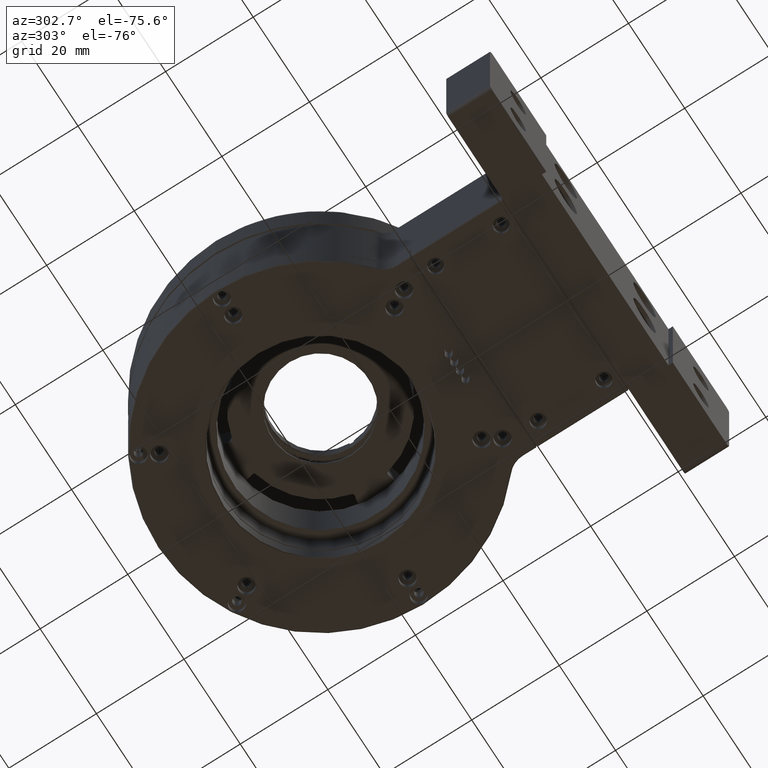
[diagram: clean part render]
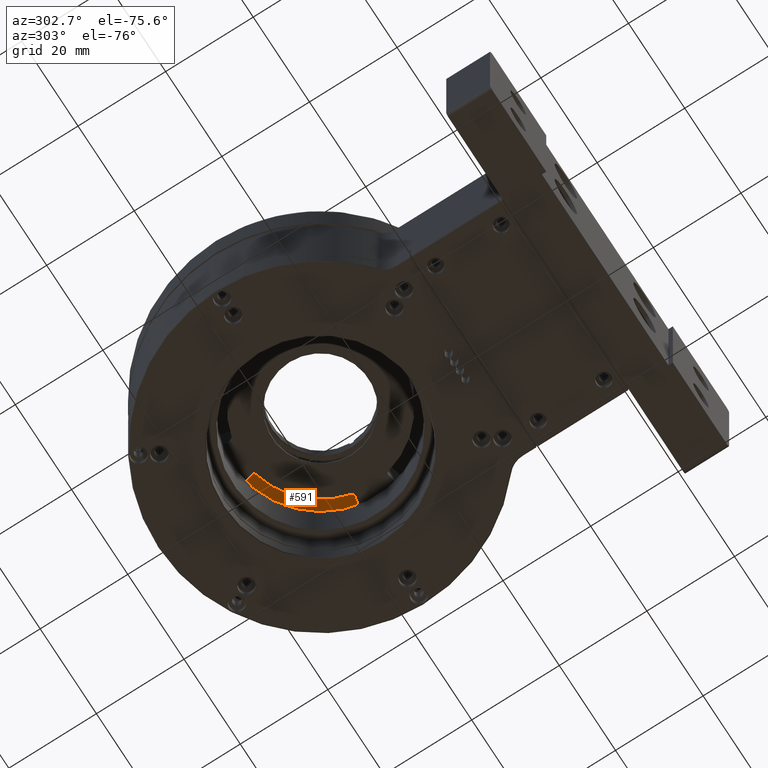
[diagram: same view with one face highlighted and labeled with its STEP entity id]
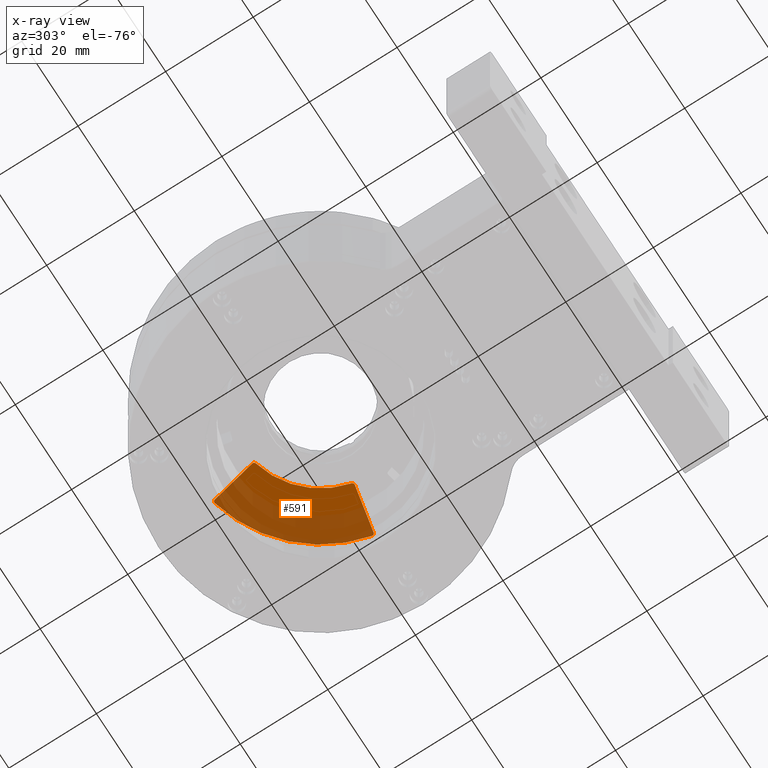
[diagram: x-ray of the same camera — body ghosted, the highlighted face saturated]
A machine part, auxiliary view. The second image highlights one B-rep face of the part: STEP entity #591.
The next image is the same camera in x-ray: the body ghosted, the highlighted face saturated — about 60% of this face is hidden behind the body in this view.
In plain terms, the highlighted planar face has unit normal (-0, 0, -1).
Its self-contained STEP definition (entity closure, byte-faithful):
#57 = CIRCLE ( 'NONE', #7062, 0.5000000000000001110 ) ;
#129 = ORIENTED_EDGE ( 'NONE', *, *, #3026, .T. ) ;
#141 = CARTESIAN_POINT ( 'NONE',  ( 18.10063269528307472, 59.79039523406878942, 37.99999999999992184 ) ) ;
#150 = EDGE_CURVE ( 'NONE', #1739, #4287, #57, .T. ) ;
#299 = DIRECTION ( 'NONE',  ( -2.191762339234539386E-15, 4.880728349222902423E-16, -1.000000000000000000 ) ) ;
#429 = EDGE_CURVE ( 'NONE', #6220, #1739, #4263, .T. ) ;
#591 = ADVANCED_FACE ( 'NONE', ( #10602 ), #8620, .T. ) ;
#656 = ORIENTED_EDGE ( 'NONE', *, *, #6009, .T. ) ;
#781 = ORIENTED_EDGE ( 'NONE', *, *, #5091, .T. ) ;
#1547 = CARTESIAN_POINT ( 'NONE',  ( 27.93501267910712471, 62.36062627562155569, 37.99999999999990052 ) ) ;
#1684 = DIRECTION ( 'NONE',  ( -2.191762339234539386E-15, 4.880728349222902423E-16, -1.000000000000000000 ) ) ;
#1739 = VERTEX_POINT ( 'NONE', #8681 ) ;
#1937 = DIRECTION ( 'NONE',  ( -0.9787701197315857859, -0.2049611005059675251, 2.045195541823030530E-15 ) ) ;
#2078 = CIRCLE ( 'NONE', #10563, 0.4999999999999992228 ) ;
#2333 = AXIS2_PLACEMENT_3D ( 'NONE', #3288, #9618, #9551 ) ;
#2656 = CARTESIAN_POINT ( 'NONE',  ( 28.42253471539171272, 62.47163196978598165, 37.99999999999990052 ) ) ;
#2825 = VERTEX_POINT ( 'NONE', #2656 ) ;
#2927 = AXIS2_PLACEMENT_3D ( 'NONE', #11823, #3662, #4472 ) ;
#3025 = CIRCLE ( 'NONE', #4110, 29.15000000000000213 ) ;
#3026 = EDGE_CURVE ( 'NONE', #5396, #8739, #2078, .T. ) ;
#3098 = VERTEX_POINT ( 'NONE', #12965 ) ;
#3288 = CARTESIAN_POINT ( 'NONE',  ( 4.913026226478148288E-14, 56.00000000000002132, 37.99999999999996447 ) ) ;
#3415 = ORIENTED_EDGE ( 'NONE', *, *, #429, .T. ) ;
#3512 = DIRECTION ( 'NONE',  ( -0.9999954532434547350, 0.003015541811622067785, 2.142368615271528285E-15 ) ) ;
#3662 = DIRECTION ( 'NONE',  ( -2.191762339234539386E-15, 4.880728349222902423E-16, -1.000000000000000000 ) ) ;
#4099 = ORIENTED_EDGE ( 'NONE', *, *, #150, .T. ) ;
#4110 = AXIS2_PLACEMENT_3D ( 'NONE', #7935, #12844, #3512 ) ;
#4263 = LINE ( 'NONE', #5090, #9032 ) ;
#4287 = VERTEX_POINT ( 'NONE', #4460 ) ;
#4460 = CARTESIAN_POINT ( 'NONE',  ( 6.642932174567367731, 84.38298701905949883, 37.99999999999996447 ) ) ;
#4472 = DIRECTION ( 'NONE',  ( -0.9999954532434546239, 0.003015541811622030489, 2.193224177865602524E-15 ) ) ;
#5044 = ORIENTED_EDGE ( 'NONE', *, *, #11714, .T. ) ;
#5090 = CARTESIAN_POINT ( 'NONE',  ( 3.795487028673565799, 73.59529136488430368, 37.99999999999996447 ) ) ;
#5091 = EDGE_CURVE ( 'NONE', #2825, #3098, #11500, .T. ) ;
#5396 = VERTEX_POINT ( 'NONE', #141 ) ;
#5827 = DIRECTION ( 'NONE',  ( -0.9999954532434547350, 0.003015541811618454356, 0.000000000000000000 ) ) ;
#5894 = CARTESIAN_POINT ( 'NONE',  ( 17.51171560056981846, 60.16411055626067395, 37.99999999999992184 ) ) ;
#6009 = EDGE_CURVE ( 'NONE', #4287, #2825, #3025, .T. ) ;
#6220 = VERTEX_POINT ( 'NONE', #7303 ) ;
#6425 = CARTESIAN_POINT ( 'NONE',  ( 4.388250324742747566, 73.97201321742771540, 37.99999999999996447 ) ) ;
#6677 = CARTESIAN_POINT ( 'NONE',  ( 6.528988226461580169, 83.89614333091095943, 37.99999999999996447 ) ) ;
#6678 = CIRCLE ( 'NONE', #2333, 18.00000000000000711 ) ;
#6885 = VECTOR ( 'NONE', #1937, 1000.000000000000000 ) ;
#7062 = AXIS2_PLACEMENT_3D ( 'NONE', #6677, #299, #11710 ) ;
#7303 = CARTESIAN_POINT ( 'NONE',  ( 3.899492231273739673, 74.07744341266865717, 37.99999999999996447 ) ) ;
#7316 = CIRCLE ( 'NONE', #12533, 0.5000000000000001110 ) ;
#7406 = DIRECTION ( 'NONE',  ( 0.2108603904818618924, 0.9775161869380152302, 1.494323384683061387E-17 ) ) ;
#7586 = DIRECTION ( 'NONE',  ( -0.9999954532434547350, 0.003015541811618448718, 0.000000000000000000 ) ) ;
#7901 = DIRECTION ( 'NONE',  ( -0.9999954532434547350, 0.003015541811618454356, 0.000000000000000000 ) ) ;
#7935 = CARTESIAN_POINT ( 'NONE',  ( 4.913026226478148288E-14, 56.00000000000002132, 37.99999999999996447 ) ) ;
#8620 = PLANE ( 'NONE',  #2927 ) ;
#8671 = DIRECTION ( 'NONE',  ( -2.191762339234539386E-15, 4.880728349222902423E-16, -1.000000000000000000 ) ) ;
#8681 = CARTESIAN_POINT ( 'NONE',  ( 6.040230132992571832, 84.00157352615190121, 37.99999999999996447 ) ) ;
#8739 = VERTEX_POINT ( 'NONE', #5894 ) ;
#9032 = VECTOR ( 'NONE', #7406, 1000.000000000000114 ) ;
#9324 = ORIENTED_EDGE ( 'NONE', *, *, #11173, .T. ) ;
#9551 = DIRECTION ( 'NONE',  ( -0.9999954532434546239, 0.003015541811621917732, 2.312964634635741872E-15 ) ) ;
#9618 = DIRECTION ( 'NONE',  ( -2.191762339234539386E-15, 4.880728349222902423E-16, -1.000000000000000000 ) ) ;
#10184 = AXIS2_PLACEMENT_3D ( 'NONE', #1547, #1684, #7901 ) ;
#10563 = AXIS2_PLACEMENT_3D ( 'NONE', #10858, #11946, #5827 ) ;
#10602 = FACE_OUTER_BOUND ( 'NONE', #12991, .T. ) ;
#10858 = CARTESIAN_POINT ( 'NONE',  ( 17.99815214503009031, 60.27978029393458570, 37.99999999999992184 ) ) ;
#11173 = EDGE_CURVE ( 'NONE', #3098, #5396, #12293, .T. ) ;
#11203 = ORIENTED_EDGE ( 'NONE', *, *, #13149, .F. ) ;
#11500 = CIRCLE ( 'NONE', #10184, 0.4999999999999992228 ) ;
#11583 = CARTESIAN_POINT ( 'NONE',  ( 4.269648964614567888, 73.48628313047021265, 37.99999999999996447 ) ) ;
#11710 = DIRECTION ( 'NONE',  ( -0.9999954532434547350, 0.003015541811618448718, 0.000000000000000000 ) ) ;
#11714 = EDGE_CURVE ( 'NONE', #12118, #6220, #7316, .T. ) ;
#11823 = CARTESIAN_POINT ( 'NONE',  ( 4.913026226478148288E-14, 56.00000000000002132, 37.99999999999996447 ) ) ;
#11946 = DIRECTION ( 'NONE',  ( -2.191762339234539386E-15, 4.880728349222902423E-16, -1.000000000000000000 ) ) ;
#12118 = VERTEX_POINT ( 'NONE', #11583 ) ;
#12293 = LINE ( 'NONE', #12433, #6885 ) ;
#12433 = CARTESIAN_POINT ( 'NONE',  ( 17.61786215516859500, 59.68929980910744604, 37.99999999999992184 ) ) ;
#12533 = AXIS2_PLACEMENT_3D ( 'NONE', #6425, #8671, #7586 ) ;
#12844 = DIRECTION ( 'NONE',  ( -2.191762339234539386E-15, 4.880728349222902423E-16, -1.000000000000000000 ) ) ;
#12965 = CARTESIAN_POINT ( 'NONE',  ( 28.03749322936010913, 61.87124121575575941, 37.99999999999990052 ) ) ;
#12991 = EDGE_LOOP ( 'NONE', ( #9324, #129, #11203, #5044, #3415, #4099, #656, #781 ) ) ;
#13149 = EDGE_CURVE ( 'NONE', #12118, #8739, #6678, .T. ) ;